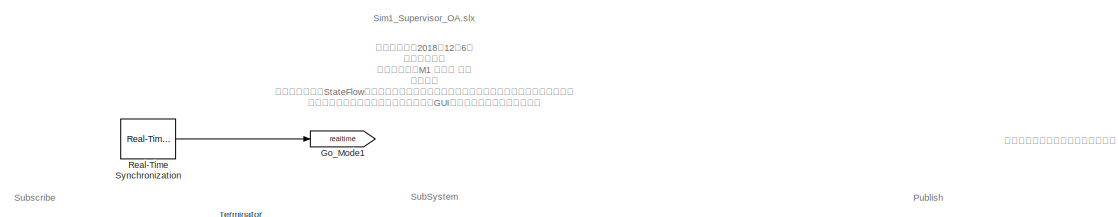
[diagram: root canvas - part 1/2, full width, top band]
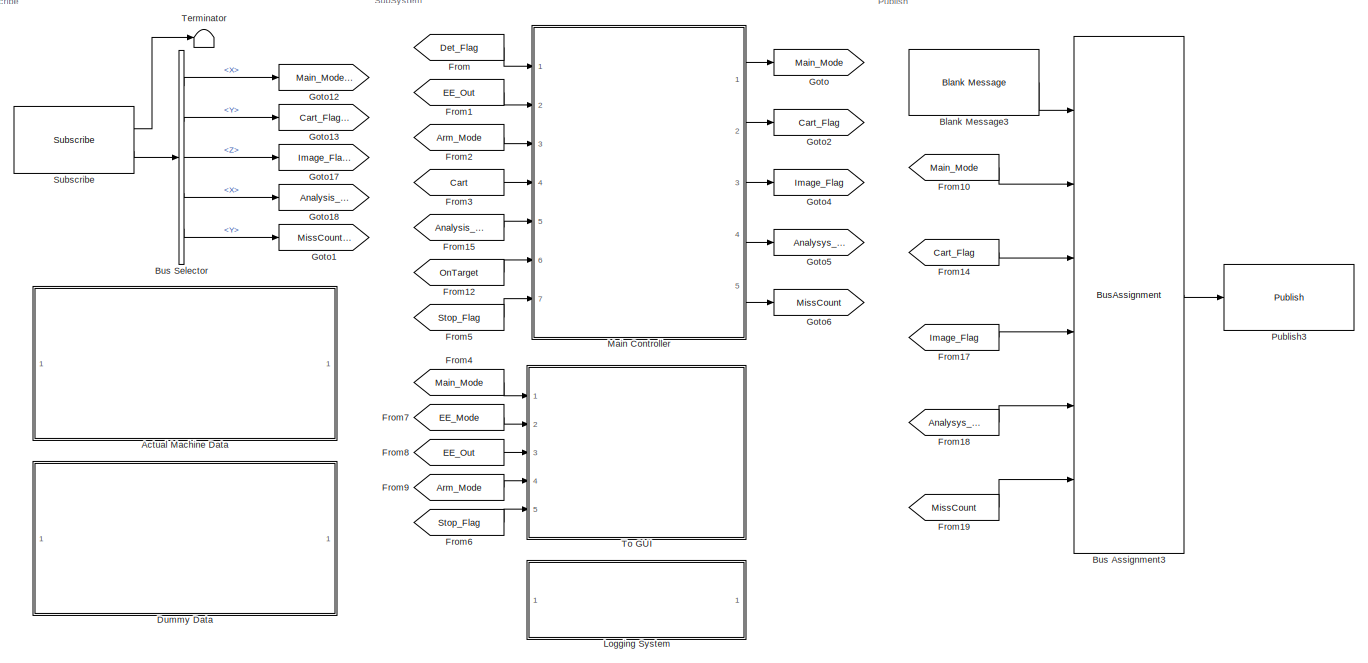
[diagram: root canvas - part 2/2, most of the canvas]
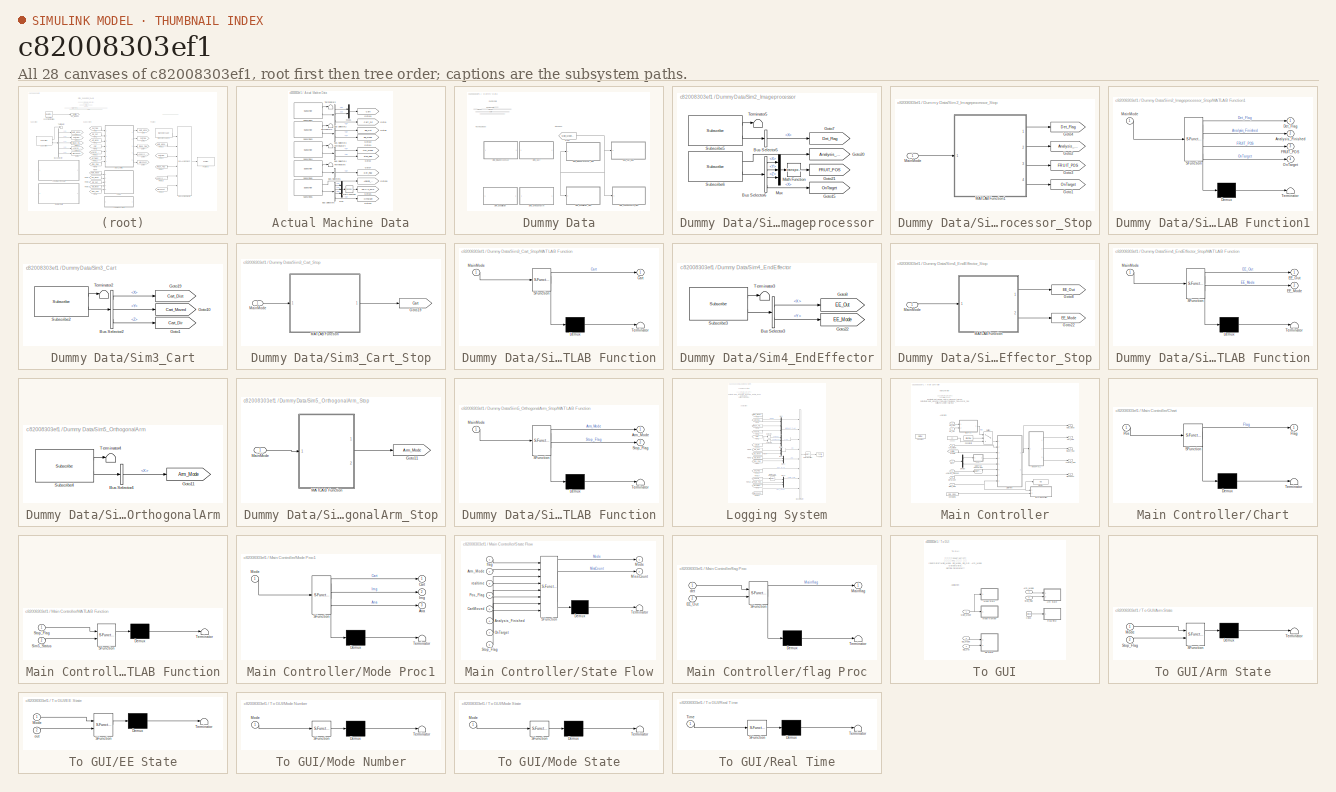
[diagram: thumbnail index - all 28 canvases of the model, root first then tree order]
MODEL slx_c82008303ef1
KIND model
CONFIG AbsTol = auto
CONFIG EnableMultiTasking = off
CONFIG FixedStep = auto
CONFIG MaxStep = auto
CONFIG MinStep = auto
CONFIG RelTol = 1e-3
CONFIG SampleTimeConstraint = Unconstrained
CONFIG SolverName = VariableStepAuto
CONFIG StartTime = 0.0
CONFIG StopFcn = %run('AutomoveData.m')
CONFIG StopTime = Inf
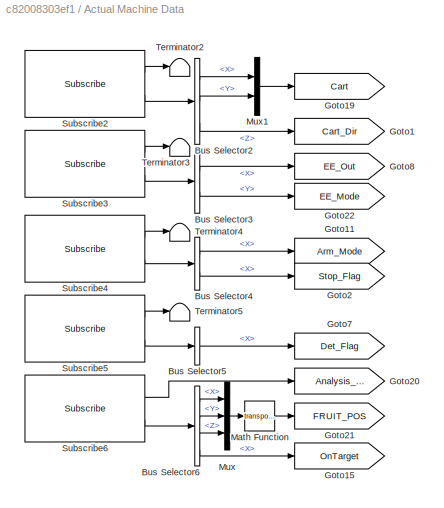
BLOCK [SubSystem] Actual Machine Data
  Ports = []
  RequestExecContextInheritance = off
BLOCK [BusSelector] Actual Machine Data/Bus Selector2
  OutputSignals = Twist.Linear.X,Twist.Linear.Y,Twist.Linear.Z
  Ports = [1, 3]
BLOCK [BusSelector] Actual Machine Data/Bus Selector3
  OutputSignals = Twist.Linear.X,Twist.Linear.Y
  Ports = [1, 2]
BLOCK [BusSelector] Actual Machine Data/Bus Selector4
  OutputSignals = Twist.Linear.X,Twist.Angular.X
  Ports = [1, 2]
BLOCK [BusSelector] Actual Machine Data/Bus Selector5
  OutputSignals = Twist.Linear.X
  Ports = [1, 1]
BLOCK [BusSelector] Actual Machine Data/Bus Selector6
  OutputSignals = Twist.Linear.X,Twist.Linear.Y,Twist.Linear.Z,Twist.Angular.X
  Ports = [1, 4]
BLOCK [Goto] Actual Machine Data/Goto1
  GotoTag = Cart_Dir
  TagVisibility = global
BLOCK [Goto] Actual Machine Data/Goto11
  GotoTag = Arm_Mode
  TagVisibility = global
BLOCK [Goto] Actual Machine Data/Goto15
  GotoTag = OnTarget
  TagVisibility = global
BLOCK [Goto] Actual Machine Data/Goto19
  GotoTag = Cart
  TagVisibility = global
BLOCK [Goto] Actual Machine Data/Goto2
  GotoTag = Stop_Flag
  TagVisibility = global
BLOCK [Goto] Actual Machine Data/Goto20
  GotoTag = Analysis_Finished
  TagVisibility = global
BLOCK [Goto] Actual Machine Data/Goto21
  GotoTag = FRUIT_POS
  TagVisibility = global
BLOCK [Goto] Actual Machine Data/Goto22
  GotoTag = EE_Mode
  TagVisibility = global
BLOCK [Goto] Actual Machine Data/Goto7
  GotoTag = Det_Flag
  TagVisibility = global
BLOCK [Goto] Actual Machine Data/Goto8
  GotoTag = EE_Out
  TagVisibility = global
BLOCK [Math] Actual Machine Data/Math Function
  Operator = transpose
  Ports = [1, 1]
  SignedPower = on
BLOCK [Mux] Actual Machine Data/Mux
  DisplayOption = bar
  Inputs = 3
  Ports = [3, 1]
BLOCK [Mux] Actual Machine Data/Mux1
  DisplayOption = bar
  Inputs = 2
  Ports = [2, 1]
BLOCK [Reference] Actual Machine Data/Subscribe2  REF=robotlib/Subscribe
  Ports = [0, 2]
  SourceBlock = robotlib/Subscribe
  SourceProductBaseCode = RR
  SourceType = ROS Subscribe
BLOCK [Reference] Actual Machine Data/Subscribe3  REF=robotlib/Subscribe
  Ports = [0, 2]
  SourceBlock = robotlib/Subscribe
  SourceProductBaseCode = RR
  SourceType = ROS Subscribe
BLOCK [Reference] Actual Machine Data/Subscribe4  REF=robotlib/Subscribe
  Ports = [0, 2]
  SourceBlock = robotlib/Subscribe
  SourceProductBaseCode = RR
  SourceType = ROS Subscribe
BLOCK [Reference] Actual Machine Data/Subscribe5  REF=robotlib/Subscribe
  Ports = [0, 2]
  SourceBlock = robotlib/Subscribe
  SourceProductBaseCode = RR
  SourceType = ROS Subscribe
BLOCK [Reference] Actual Machine Data/Subscribe6  REF=robotlib/Subscribe
  Ports = [0, 2]
  SourceBlock = robotlib/Subscribe
  SourceProductBaseCode = RR
  SourceType = ROS Subscribe
BLOCK [Terminator] Actual Machine Data/Terminator2
BLOCK [Terminator] Actual Machine Data/Terminator3
BLOCK [Terminator] Actual Machine Data/Terminator4
BLOCK [Terminator] Actual Machine Data/Terminator5
BLOCK [Reference] Blank Message3  REF=robotlib/Blank Message
  Ports = [0, 1]
  SourceBlock = robotlib/Blank Message
  SourceProductBaseCode = RR
  SourceType = ROS Blank Message
BLOCK [BusAssignment] Bus Assignment3
  AssignedSignals = Twist.Linear.X,Twist.Linear.Y,Twist.Linear.Z,Twist.Angular.X,Twist.Angular.Y
  Ports = [6, 1]
BLOCK [BusSelector] Bus Selector
  OutputSignals = Twist.Linear.X,Twist.Linear.Y,Twist.Linear.Z,Twist.Angular.X,Twist.Angular.Y
  Ports = [1, 5]
BLOCK [SubSystem] Dummy Data
  Commented = on
  Ports = []
  RequestExecContextInheritance = off
BLOCK [From] Dummy Data/From
  GotoTag = Main_Mode_R
  TagVisibility = global
BLOCK [SubSystem] Dummy Data/Sim2_Imageprocessor
  Commented = on
  Ports = []
  RequestExecContextInheritance = off
BLOCK [BusSelector] Dummy Data/Sim2_Imageprocessor/Bus Selector5
  OutputSignals = Twist.Linear.X
  Ports = [1, 1]
BLOCK [BusSelector] Dummy Data/Sim2_Imageprocessor/Bus Selector6
  OutputSignals = Twist.Linear.X,Twist.Linear.Y,Twist.Linear.Z,Twist.Angular.X
  Ports = [1, 4]
BLOCK [Goto] Dummy Data/Sim2_Imageprocessor/Goto15
  GotoTag = OnTarget
  TagVisibility = global
BLOCK [Goto] Dummy Data/Sim2_Imageprocessor/Goto20
  GotoTag = Analysis_Finished
  TagVisibility = global
BLOCK [Goto] Dummy Data/Sim2_Imageprocessor/Goto21
  GotoTag = FRUIT_POS
  TagVisibility = global
BLOCK [Goto] Dummy Data/Sim2_Imageprocessor/Goto7
  GotoTag = Det_Flag
  TagVisibility = global
BLOCK [Math] Dummy Data/Sim2_Imageprocessor/Math Function
  Operator = transpose
  Ports = [1, 1]
  SignedPower = on
BLOCK [Mux] Dummy Data/Sim2_Imageprocessor/Mux
  DisplayOption = bar
  Inputs = 3
  Ports = [3, 1]
BLOCK [Reference] Dummy Data/Sim2_Imageprocessor/Subscribe5  REF=robotlib/Subscribe
  Ports = [0, 2]
  SourceBlock = robotlib/Subscribe
  SourceProductBaseCode = RR
  SourceType = ROS Subscribe
BLOCK [Reference] Dummy Data/Sim2_Imageprocessor/Subscribe6  REF=robotlib/Subscribe
  Ports = [0, 2]
  SourceBlock = robotlib/Subscribe
  SourceProductBaseCode = RR
  SourceType = ROS Subscribe
BLOCK [Terminator] Dummy Data/Sim2_Imageprocessor/Terminator5
BLOCK [SubSystem] Dummy Data/Sim2_Imageprocessor_Stop
  Ports = [1]
  RequestExecContextInheritance = off
BLOCK [Goto] Dummy Data/Sim2_Imageprocessor_Stop/Goto1
  GotoTag = OnTarget
  TagVisibility = global
BLOCK [Goto] Dummy Data/Sim2_Imageprocessor_Stop/Goto2
  GotoTag = Analysis_Finished
  TagVisibility = global
BLOCK [Goto] Dummy Data/Sim2_Imageprocessor_Stop/Goto3
  GotoTag = FRUIT_POS
  TagVisibility = global
BLOCK [Goto] Dummy Data/Sim2_Imageprocessor_Stop/Goto4
  GotoTag = Det_Flag
  TagVisibility = global
BLOCK [SubSystem] Dummy Data/Sim2_Imageprocessor_Stop/MATLAB Function1
  ErrorFcn = Stateflow.Translate.translate
  PermitHierarchicalResolution = ExplicitOnly
  Ports = [1, 4]
  RequestExecContextInheritance = off
  SFBlockType = MATLAB Function
  TreatAsAtomicUnit = on
BLOCK [Demux] Dummy Data/Sim2_Imageprocessor_Stop/MATLAB Function1/ Demux 
  Outputs = 1
  Ports = [1, 1]
BLOCK [S-Function] Dummy Data/Sim2_Imageprocessor_Stop/MATLAB Function1/ SFunction 
  EnableBusSupport = on
  FunctionName = sf_sfun
  PortCounts = [1 5]
  Ports = [1, 5]
  SFcnIsStateOwnerBlock = off
  SFunctionDeploymentMode = off
  Tag = Stateflow S-Function 7
BLOCK [Terminator] Dummy Data/Sim2_Imageprocessor_Stop/MATLAB Function1/ Terminator 
BLOCK [Outport] Dummy Data/Sim2_Imageprocessor_Stop/MATLAB Function1/Analysis_Finished
  Port = 2
  VectorParamsAs1DForOutWhenUnconnected = off
BLOCK [Outport] Dummy Data/Sim2_Imageprocessor_Stop/MATLAB Function1/Det_Flag
  VectorParamsAs1DForOutWhenUnconnected = off
BLOCK [Outport] Dummy Data/Sim2_Imageprocessor_Stop/MATLAB Function1/FRUIT_POS
  Port = 3
  VectorParamsAs1DForOutWhenUnconnected = off
BLOCK [Inport] Dummy Data/Sim2_Imageprocessor_Stop/MATLAB Function1/MainMode
BLOCK [Outport] Dummy Data/Sim2_Imageprocessor_Stop/MATLAB Function1/OnTarget
  Port = 4
  VectorParamsAs1DForOutWhenUnconnected = off
BLOCK [Inport] Dummy Data/Sim2_Imageprocessor_Stop/MainMode
BLOCK [SubSystem] Dummy Data/Sim3_Cart
  Commented = on
  Ports = []
  RequestExecContextInheritance = off
BLOCK [BusSelector] Dummy Data/Sim3_Cart/Bus Selector2
  OutputSignals = Twist.Linear.X,Twist.Linear.Y,Twist.Linear.Z
  Ports = [1, 3]
BLOCK [Goto] Dummy Data/Sim3_Cart/Goto1
  GotoTag = Cart_Dir
  TagVisibility = global
BLOCK [Goto] Dummy Data/Sim3_Cart/Goto10
  GotoTag = Cart_Moved
  TagVisibility = global
BLOCK [Goto] Dummy Data/Sim3_Cart/Goto19
  GotoTag = Cart_Dist
  TagVisibility = global
BLOCK [Reference] Dummy Data/Sim3_Cart/Subscribe2  REF=robotlib/Subscribe
  Ports = [0, 2]
  SourceBlock = robotlib/Subscribe
  SourceProductBaseCode = RR
  SourceType = ROS Subscribe
BLOCK [Terminator] Dummy Data/Sim3_Cart/Terminator2
BLOCK [SubSystem] Dummy Data/Sim3_Cart_Stop
  Ports = [1]
  RequestExecContextInheritance = off
BLOCK [Goto] Dummy Data/Sim3_Cart_Stop/Goto19
  GotoTag = Cart
  TagVisibility = global
BLOCK [SubSystem] Dummy Data/Sim3_Cart_Stop/MATLAB Function
  ErrorFcn = Stateflow.Translate.translate
  PermitHierarchicalResolution = ExplicitOnly
  Ports = [1, 1]
  RequestExecContextInheritance = off
  SFBlockType = MATLAB Function
  TreatAsAtomicUnit = on
BLOCK [Demux] Dummy Data/Sim3_Cart_Stop/MATLAB Function/ Demux 
  Outputs = 1
  Ports = [1, 1]
BLOCK [S-Function] Dummy Data/Sim3_Cart_Stop/MATLAB Function/ SFunction 
  EnableBusSupport = on
  FunctionName = sf_sfun
  PortCounts = [1 2]
  Ports = [1, 2]
  SFcnIsStateOwnerBlock = off
  SFunctionDeploymentMode = off
  Tag = Stateflow S-Function 3
BLOCK [Terminator] Dummy Data/Sim3_Cart_Stop/MATLAB Function/ Terminator 
BLOCK [Outport] Dummy Data/Sim3_Cart_Stop/MATLAB Function/Cart
  VectorParamsAs1DForOutWhenUnconnected = off
BLOCK [Inport] Dummy Data/Sim3_Cart_Stop/MATLAB Function/MainMode
BLOCK [Inport] Dummy Data/Sim3_Cart_Stop/MainMode
BLOCK [SubSystem] Dummy Data/Sim4_EndEffector
  Commented = on
  Ports = []
  RequestExecContextInheritance = off
BLOCK [BusSelector] Dummy Data/Sim4_EndEffector/Bus Selector3
  OutputSignals = Twist.Linear.X,Twist.Linear.Y
  Ports = [1, 2]
BLOCK [Goto] Dummy Data/Sim4_EndEffector/Goto22
  GotoTag = EE_Mode
  TagVisibility = global
BLOCK [Goto] Dummy Data/Sim4_EndEffector/Goto8
  GotoTag = EE_Out
  TagVisibility = global
BLOCK [Reference] Dummy Data/Sim4_EndEffector/Subscribe3  REF=robotlib/Subscribe
  Ports = [0, 2]
  SourceBlock = robotlib/Subscribe
  SourceProductBaseCode = RR
  SourceType = ROS Subscribe
BLOCK [Terminator] Dummy Data/Sim4_EndEffector/Terminator3
BLOCK [SubSystem] Dummy Data/Sim4_EndEffector_Stop
  Ports = [1]
  RequestExecContextInheritance = off
BLOCK [Goto] Dummy Data/Sim4_EndEffector_Stop/Goto22
  GotoTag = EE_Mode
  TagVisibility = global
BLOCK [Goto] Dummy Data/Sim4_EndEffector_Stop/Goto8
  GotoTag = EE_Out
  TagVisibility = global
BLOCK [SubSystem] Dummy Data/Sim4_EndEffector_Stop/MATLAB Function
  ErrorFcn = Stateflow.Translate.translate
  PermitHierarchicalResolution = ExplicitOnly
  Ports = [1, 2]
  RequestExecContextInheritance = off
  SFBlockType = MATLAB Function
  TreatAsAtomicUnit = on
BLOCK [Demux] Dummy Data/Sim4_EndEffector_Stop/MATLAB Function/ Demux 
  Outputs = 1
  Ports = [1, 1]
BLOCK [S-Function] Dummy Data/Sim4_EndEffector_Stop/MATLAB Function/ SFunction 
  EnableBusSupport = on
  FunctionName = sf_sfun
  PortCounts = [1 3]
  Ports = [1, 3]
  SFcnIsStateOwnerBlock = off
  SFunctionDeploymentMode = off
  Tag = Stateflow S-Function 4
BLOCK [Terminator] Dummy Data/Sim4_EndEffector_Stop/MATLAB Function/ Terminator 
BLOCK [Outport] Dummy Data/Sim4_EndEffector_Stop/MATLAB Function/EE_Mode
  Port = 2
  VectorParamsAs1DForOutWhenUnconnected = off
BLOCK [Outport] Dummy Data/Sim4_EndEffector_Stop/MATLAB Function/EE_Out
  VectorParamsAs1DForOutWhenUnconnected = off
BLOCK [Inport] Dummy Data/Sim4_EndEffector_Stop/MATLAB Function/MainMode
BLOCK [Inport] Dummy Data/Sim4_EndEffector_Stop/MainMode
BLOCK [SubSystem] Dummy Data/Sim5_OrthogonalArm
  Commented = on
  Ports = []
  RequestExecContextInheritance = off
BLOCK [BusSelector] Dummy Data/Sim5_OrthogonalArm/Bus Selector4
  OutputSignals = Twist.Linear.X
  Ports = [1, 1]
BLOCK [Goto] Dummy Data/Sim5_OrthogonalArm/Goto11
  GotoTag = Arm_Mode
  TagVisibility = global
BLOCK [Reference] Dummy Data/Sim5_OrthogonalArm/Subscribe4  REF=robotlib/Subscribe
  Ports = [0, 2]
  SourceBlock = robotlib/Subscribe
  SourceProductBaseCode = RR
  SourceType = ROS Subscribe
BLOCK [Terminator] Dummy Data/Sim5_OrthogonalArm/Terminator4
BLOCK [SubSystem] Dummy Data/Sim5_OrthogonalArm_Stop
  Ports = [1]
  RequestExecContextInheritance = off
BLOCK [Goto] Dummy Data/Sim5_OrthogonalArm_Stop/Goto11
  GotoTag = Arm_Mode
  TagVisibility = global
BLOCK [SubSystem] Dummy Data/Sim5_OrthogonalArm_Stop/MATLAB Function
  ErrorFcn = Stateflow.Translate.translate
  PermitHierarchicalResolution = ExplicitOnly
  Ports = [1, 2]
  RequestExecContextInheritance = off
  SFBlockType = MATLAB Function
  TreatAsAtomicUnit = on
BLOCK [Demux] Dummy Data/Sim5_OrthogonalArm_Stop/MATLAB Function/ Demux 
  Outputs = 1
  Ports = [1, 1]
BLOCK [S-Function] Dummy Data/Sim5_OrthogonalArm_Stop/MATLAB Function/ SFunction 
  EnableBusSupport = on
  FunctionName = sf_sfun
  PortCounts = [1 3]
  Ports = [1, 3]
  SFcnIsStateOwnerBlock = off
  SFunctionDeploymentMode = off
  Tag = Stateflow S-Function 6
BLOCK [Terminator] Dummy Data/Sim5_OrthogonalArm_Stop/MATLAB Function/ Terminator 
BLOCK [Outport] Dummy Data/Sim5_OrthogonalArm_Stop/MATLAB Function/Arm_Mode
  VectorParamsAs1DForOutWhenUnconnected = off
BLOCK [Inport] Dummy Data/Sim5_OrthogonalArm_Stop/MATLAB Function/MainMode
BLOCK [Outport] Dummy Data/Sim5_OrthogonalArm_Stop/MATLAB Function/Stop_Flag
  Port = 2
  VectorParamsAs1DForOutWhenUnconnected = off
BLOCK [Inport] Dummy Data/Sim5_OrthogonalArm_Stop/MainMode
BLOCK [From] From
  GotoTag = Det_Flag
  TagVisibility = global
BLOCK [From] From1
  GotoTag = EE_Out
  TagVisibility = global
BLOCK [From] From10
  GotoTag = Main_Mode
  TagVisibility = global
BLOCK [From] From12
  GotoTag = OnTarget
  TagVisibility = global
BLOCK [From] From14
  GotoTag = Cart_Flag
  TagVisibility = global
BLOCK [From] From15
  GotoTag = Analysis_Finished
  TagVisibility = global
BLOCK [From] From17
  GotoTag = Image_Flag
  TagVisibility = global
BLOCK [From] From18
  GotoTag = Analysys_Flag
  TagVisibility = global
BLOCK [From] From19
  GotoTag = MissCount
  TagVisibility = global
BLOCK [From] From2
  GotoTag = Arm_Mode
  TagVisibility = global
BLOCK [From] From3
  GotoTag = Cart
  TagVisibility = global
BLOCK [From] From4
  GotoTag = Main_Mode
  TagVisibility = global
BLOCK [From] From5
  GotoTag = Stop_Flag
  TagVisibility = global
BLOCK [From] From6
  GotoTag = Stop_Flag
  TagVisibility = global
BLOCK [From] From7
  GotoTag = EE_Mode
  TagVisibility = global
BLOCK [From] From8
  GotoTag = EE_Out
  TagVisibility = global
BLOCK [From] From9
  GotoTag = Arm_Mode
  TagVisibility = global
BLOCK [Goto] Go_Mode1
  GotoTag = realtime
  TagVisibility = global
BLOCK [Goto] Goto
  GotoTag = Main_Mode
  TagVisibility = global
BLOCK [Goto] Goto1
  GotoTag = MissCount_R
  TagVisibility = global
BLOCK [Goto] Goto12
  GotoTag = Main_Mode_R
  TagVisibility = global
BLOCK [Goto] Goto13
  GotoTag = Cart_Flag_R
  TagVisibility = global
BLOCK [Goto] Goto17
  GotoTag = Image_Flag_R
  TagVisibility = global
BLOCK [Goto] Goto18
  GotoTag = Analysis_Flag_R
  TagVisibility = global
BLOCK [Goto] Goto2
  GotoTag = Cart_Flag
  TagVisibility = global
BLOCK [Goto] Goto4
  GotoTag = Image_Flag
  TagVisibility = global
BLOCK [Goto] Goto5
  GotoTag = Analysys_Flag
  TagVisibility = global
BLOCK [Goto] Goto6
  GotoTag = MissCount
  TagVisibility = global
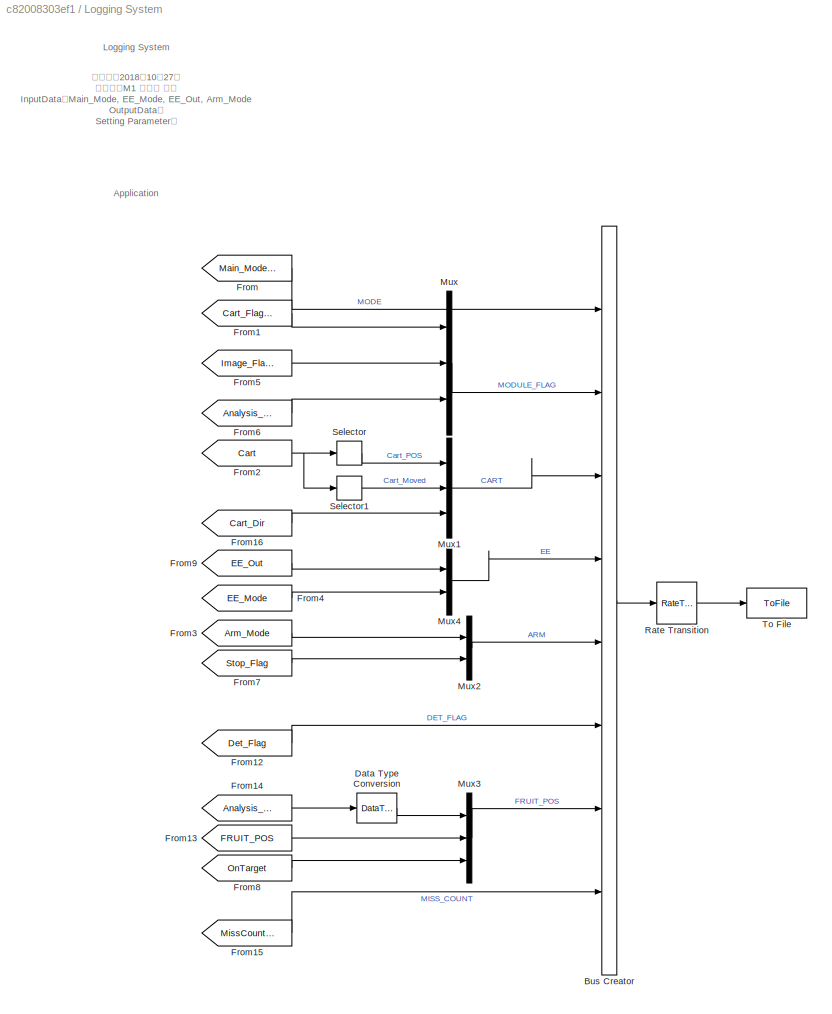
BLOCK [SubSystem] Logging System
  Ports = []
  RequestExecContextInheritance = off
BLOCK [BusCreator] Logging System/Bus Creator
  DisplayOption = bar
  InheritFromInputs = on
  Inputs = 8
  Ports = [8, 1]
BLOCK [DataTypeConversion] Logging System/Data Type Conversion
  RndMeth = Floor
  SaturateOnIntegerOverflow = off
BLOCK [From] Logging System/From
  GotoTag = Main_Mode_R
  TagVisibility = global
BLOCK [From] Logging System/From1
  GotoTag = Cart_Flag_R
  TagVisibility = global
BLOCK [From] Logging System/From12
  GotoTag = Det_Flag
  TagVisibility = global
BLOCK [From] Logging System/From13
  GotoTag = FRUIT_POS
  TagVisibility = global
BLOCK [From] Logging System/From14
  GotoTag = Analysis_Finished
  TagVisibility = global
BLOCK [From] Logging System/From15
  GotoTag = MissCount_R
  TagVisibility = global
BLOCK [From] Logging System/From16
  GotoTag = Cart_Dir
  TagVisibility = global
BLOCK [From] Logging System/From2
  GotoTag = Cart
  TagVisibility = global
BLOCK [From] Logging System/From3
  GotoTag = Arm_Mode
  TagVisibility = global
BLOCK [From] Logging System/From4
  GotoTag = EE_Mode
  TagVisibility = global
BLOCK [From] Logging System/From5
  GotoTag = Image_Flag_R
  TagVisibility = global
BLOCK [From] Logging System/From6
  GotoTag = Analysis_Flag_R
  TagVisibility = global
BLOCK [From] Logging System/From7
  GotoTag = Stop_Flag
  TagVisibility = global
BLOCK [From] Logging System/From8
  GotoTag = OnTarget
  TagVisibility = global
BLOCK [From] Logging System/From9
  GotoTag = EE_Out
  TagVisibility = global
BLOCK [Mux] Logging System/Mux
  DisplayOption = bar
  Inputs = 3
  Ports = [3, 1]
BLOCK [Mux] Logging System/Mux1
  DisplayOption = bar
  Inputs = 3
  Ports = [3, 1]
BLOCK [Mux] Logging System/Mux2
  DisplayOption = bar
  Inputs = 2
  Ports = [2, 1]
BLOCK [Mux] Logging System/Mux3
  DisplayOption = bar
  Inputs = 3
  Ports = [3, 1]
BLOCK [Mux] Logging System/Mux4
  DisplayOption = bar
  Inputs = 2
  Ports = [2, 1]
BLOCK [RateTransition] Logging System/Rate Transition
BLOCK [Selector] Logging System/Selector
  IndexOptions = Index vector (dialog)
  Indices = [1]
  InputPortWidth = 2
  OutputSizes = 1
  Ports = [1, 1]
BLOCK [Selector] Logging System/Selector1
  IndexOptions = Index vector (dialog)
  Indices = [2]
  InputPortWidth = 2
  OutputSizes = 1
  Ports = [1, 1]
BLOCK [ToFile] Logging System/To File
  Filename = LogData.mat
  MatrixName = LogData
  Ports = [1]
  SaveFormat = Timeseries
BLOCK [SubSystem] Main Controller
  Ports = [7, 5]
  RequestExecContextInheritance = off
BLOCK [Inport] Main Controller/Analysis_Finished
  Port = 5
BLOCK [Outport] Main Controller/Analysis_Flag
  Port = 4
  VectorParamsAs1DForOutWhenUnconnected = off
BLOCK [Inport] Main Controller/Arm_Mode
  Port = 3
BLOCK [Inport] Main Controller/Cart
  Port = 4
BLOCK [Outport] Main Controller/Cart_Flag
  Port = 2
  VectorParamsAs1DForOutWhenUnconnected = off
BLOCK [SubSystem] Main Controller/Chart
  ErrorFcn = Stateflow.Translate.translate
  PermitHierarchicalResolution = ExplicitOnly
  Ports = [1, 1]
  RequestExecContextInheritance = off
  SFBlockType = Chart
  TreatAsAtomicUnit = on
BLOCK [Demux] Main Controller/Chart/ Demux 
  Outputs = 1
  Ports = [1, 1]
BLOCK [S-Function] Main Controller/Chart/ SFunction 
  EnableBusSupport = on
  FunctionName = sf_sfun
  PortCounts = [1 2]
  Ports = [1, 2]
  SFcnIsStateOwnerBlock = off
  SFunctionDeploymentMode = off
  Tag = Stateflow S-Function 2
BLOCK [Terminator] Main Controller/Chart/ Terminator 
BLOCK [Outport] Main Controller/Chart/Flag
  VectorParamsAs1DForOutWhenUnconnected = off
BLOCK [Inport] Main Controller/Chart/Pos
BLOCK [Constant] Main Controller/Constant
  Commented = on
  SampleTime = Inf
  Value = StartSW
BLOCK [Constant] Main Controller/Constant1
  SampleTime = dt
  Value = Sim5_Status
BLOCK [Constant] Main Controller/Constant2
  Value = StartSW
BLOCK [DataTypeConversion] Main Controller/Data Type Conversion
  RndMeth = Floor
  SaturateOnIntegerOverflow = off
BLOCK [Demux] Main Controller/Demux
  Outputs = 2
  Ports = [1, 2]
BLOCK [Inport] Main Controller/Det_Flag
BLOCK [Display] Main Controller/Display
  Decimation = 1
  Ports = [1]
BLOCK [Inport] Main Controller/EE_Out
  Port = 2
BLOCK [From] Main Controller/From3
  GotoTag = realtime
  TagVisibility = global
BLOCK [Outport] Main Controller/Image_Flag
  Port = 3
  VectorParamsAs1DForOutWhenUnconnected = off
BLOCK [SubSystem] Main Controller/MATLAB Function
  ErrorFcn = Stateflow.Translate.translate
  PermitHierarchicalResolution = ExplicitOnly
  Ports = [2]
  RequestExecContextInheritance = off
  SFBlockType = MATLAB Function
  TreatAsAtomicUnit = on
BLOCK [Demux] Main Controller/MATLAB Function/ Demux 
  Outputs = 1
  Ports = [1, 1]
BLOCK [S-Function] Main Controller/MATLAB Function/ SFunction 
  EnableBusSupport = on
  FunctionName = sf_sfun
  PortCounts = [2 1]
  Ports = [2, 1]
  SFcnIsStateOwnerBlock = off
  SFunctionDeploymentMode = off
  Tag = Stateflow S-Function 9
BLOCK [Terminator] Main Controller/MATLAB Function/ Terminator 
BLOCK [Inport] Main Controller/MATLAB Function/Sim5_Status
  Port = 2
BLOCK [Inport] Main Controller/MATLAB Function/Stop_Flag
BLOCK [Outport] Main Controller/Main_Mode
  VectorParamsAs1DForOutWhenUnconnected = off
BLOCK [Outport] Main Controller/MissCount
  Port = 5
  VectorParamsAs1DForOutWhenUnconnected = off
BLOCK [SubSystem] Main Controller/Mode Proc1
  ErrorFcn = Stateflow.Translate.translate
  PermitHierarchicalResolution = ExplicitOnly
  Ports = [1, 3]
  RequestExecContextInheritance = off
  SFBlockType = MATLAB Function
  TreatAsAtomicUnit = on
BLOCK [Demux] Main Controller/Mode Proc1/ Demux 
  Outputs = 1
  Ports = [1, 1]
BLOCK [S-Function] Main Controller/Mode Proc1/ SFunction 
  EnableBusSupport = on
  FunctionName = sf_sfun
  PortCounts = [1 4]
  Ports = [1, 4]
  SFcnIsStateOwnerBlock = off
  SFunctionDeploymentMode = off
  Tag = Stateflow S-Function 5
BLOCK [Terminator] Main Controller/Mode Proc1/ Terminator 
BLOCK [Outport] Main Controller/Mode Proc1/Ana
  Port = 3
  VectorParamsAs1DForOutWhenUnconnected = off
BLOCK [Outport] Main Controller/Mode Proc1/Cart
  VectorParamsAs1DForOutWhenUnconnected = off
BLOCK [Outport] Main Controller/Mode Proc1/Img
  Port = 2
  VectorParamsAs1DForOutWhenUnconnected = off
BLOCK [Inport] Main Controller/Mode Proc1/Mode
BLOCK [Inport] Main Controller/OnTarget
  Port = 6
BLOCK [SubSystem] Main Controller/State Flow
  ErrorFcn = Stateflow.Translate.translate
  PermitHierarchicalResolution = ExplicitOnly
  Ports = [8, 2]
  RequestExecContextInheritance = off
  SFBlockType = Chart
  TreatAsAtomicUnit = on
BLOCK [Demux] Main Controller/State Flow/ Demux 
  Outputs = 1
  Ports = [1, 1]
BLOCK [S-Function] Main Controller/State Flow/ SFunction 
  EnableBusSupport = on
  FunctionName = sf_sfun
  PortCounts = [8 3]
  Ports = [8, 3]
  SFcnIsStateOwnerBlock = off
  SFunctionDeploymentMode = off
  Tag = Stateflow S-Function 1
BLOCK [Terminator] Main Controller/State Flow/ Terminator 
BLOCK [Inport] Main Controller/State Flow/Analysis_Finished
  Port = 6
BLOCK [Inport] Main Controller/State Flow/Arm_Mode
  Port = 2
BLOCK [Inport] Main Controller/State Flow/CartMoved
  Port = 5
BLOCK [Outport] Main Controller/State Flow/MissCount
  Port = 2
  VectorParamsAs1DForOutWhenUnconnected = off
BLOCK [Outport] Main Controller/State Flow/Mode
  VectorParamsAs1DForOutWhenUnconnected = off
BLOCK [Inport] Main Controller/State Flow/OnTarget
  Port = 7
BLOCK [Inport] Main Controller/State Flow/Pos_Flag
  Port = 4
BLOCK [Inport] Main Controller/State Flow/Stop_Flag
  Port = 8
BLOCK [Inport] Main Controller/State Flow/flag
BLOCK [Inport] Main Controller/State Flow/realtime
  Port = 3
BLOCK [Inport] Main Controller/Stop_Flag
  Port = 7
BLOCK [Switch] Main Controller/Switch
  Criteria = u2 ~= 0
  InputSameDT = off
  SaturateOnIntegerOverflow = off
BLOCK [SubSystem] Main Controller/flag Proc
  ErrorFcn = Stateflow.Translate.translate
  PermitHierarchicalResolution = ExplicitOnly
  Ports = [2, 1]
  RequestExecContextInheritance = off
  SFBlockType = MATLAB Function
  TreatAsAtomicUnit = on
BLOCK [Demux] Main Controller/flag Proc/ Demux 
  Outputs = 1
  Ports = [1, 1]
BLOCK [S-Function] Main Controller/flag Proc/ SFunction 
  EnableBusSupport = on
  FunctionName = sf_sfun
  PortCounts = [2 2]
  Ports = [2, 2]
  SFcnIsStateOwnerBlock = off
  SFunctionDeploymentMode = off
  Tag = Stateflow S-Function 8
BLOCK [Terminator] Main Controller/flag Proc/ Terminator 
BLOCK [Inport] Main Controller/flag Proc/EE_Out
  Port = 2
BLOCK [Outport] Main Controller/flag Proc/Mainflag
  VectorParamsAs1DForOutWhenUnconnected = off
BLOCK [Inport] Main Controller/flag Proc/det
BLOCK [Constant] Main Controller/待機フラグ
  Value = 12
BLOCK [Reference] Publish3  REF=robotlib/Publish
  Ports = [1]
  SourceBlock = robotlib/Publish
  SourceProductBaseCode = RR
  SourceType = ROS Publish
BLOCK [Reference] Real-Time Synchronization  REF=sldrtlib/Real-Time
Synchronization
  Ports = [0, 1]
  SourceBlock = sldrtlib/Real-Time\nSynchronization
  SourceProductBaseCode = WT
  SourceType = Simulink Desktop Real-Time Synchronization
BLOCK [Reference] Subscribe  REF=robotlib/Subscribe
  Ports = [0, 2]
  SourceBlock = robotlib/Subscribe
  SourceProductBaseCode = RR
  SourceType = ROS Subscribe
BLOCK [Terminator] Terminator
BLOCK [SubSystem] To GUI
  Ports = [5]
  RequestExecContextInheritance = off
BLOCK [SubSystem] To GUI/Arm State
  ErrorFcn = Stateflow.Translate.translate
  PermitHierarchicalResolution = ExplicitOnly
  Ports = [2]
  RequestExecContextInheritance = off
  SFBlockType = MATLAB Function
  TreatAsAtomicUnit = on
BLOCK [Demux] To GUI/Arm State/ Demux 
  Outputs = 1
  Ports = [1, 1]
BLOCK [S-Function] To GUI/Arm State/ SFunction 
  EnableBusSupport = on
  FunctionName = sf_sfun
  PortCounts = [2 1]
  Ports = [2, 1]
  SFcnIsStateOwnerBlock = off
  SFunctionDeploymentMode = off
  Tag = Stateflow S-Function 27
BLOCK [Terminator] To GUI/Arm State/ Terminator 
BLOCK [Inport] To GUI/Arm State/Mode
BLOCK [Inport] To GUI/Arm State/Stop_Flag
  Port = 2
BLOCK [Inport] To GUI/Arm_Mode
  Port = 4
BLOCK [Clock] To GUI/Clock
BLOCK [SubSystem] To GUI/EE State
  ErrorFcn = Stateflow.Translate.translate
  PermitHierarchicalResolution = ExplicitOnly
  Ports = [2]
  RequestExecContextInheritance = off
  SFBlockType = MATLAB Function
  TreatAsAtomicUnit = on
BLOCK [Demux] To GUI/EE State/ Demux 
  Outputs = 1
  Ports = [1, 1]
BLOCK [S-Function] To GUI/EE State/ SFunction 
  EnableBusSupport = on
  FunctionName = sf_sfun
  PortCounts = [2 1]
  Ports = [2, 1]
  SFcnIsStateOwnerBlock = off
  SFunctionDeploymentMode = off
  Tag = Stateflow S-Function 26
BLOCK [Terminator] To GUI/EE State/ Terminator 
BLOCK [Inport] To GUI/EE State/Mode
BLOCK [Inport] To GUI/EE State/out
  Port = 2
BLOCK [Inport] To GUI/EE_Mode
  Port = 2
BLOCK [Inport] To GUI/EE_Out
  Port = 3
BLOCK [Inport] To GUI/Main_Mode
BLOCK [SubSystem] To GUI/Mode Number
  ErrorFcn = Stateflow.Translate.translate
  PermitHierarchicalResolution = ExplicitOnly
  Ports = [1]
  RequestExecContextInheritance = off
  SFBlockType = MATLAB Function
  TreatAsAtomicUnit = on
BLOCK [Demux] To GUI/Mode Number/ Demux 
  Outputs = 1
  Ports = [1, 1]
BLOCK [S-Function] To GUI/Mode Number/ SFunction 
  EnableBusSupport = on
  FunctionName = sf_sfun
  PortCounts = [1 1]
  Ports = [1, 1]
  SFcnIsStateOwnerBlock = off
  SFunctionDeploymentMode = off
  Tag = Stateflow S-Function 24
BLOCK [Terminator] To GUI/Mode Number/ Terminator 
BLOCK [Inport] To GUI/Mode Number/Mode
BLOCK [SubSystem] To GUI/Mode State
  ErrorFcn = Stateflow.Translate.translate
  PermitHierarchicalResolution = ExplicitOnly
  Ports = [1]
  RequestExecContextInheritance = off
  SFBlockType = MATLAB Function
  TreatAsAtomicUnit = on
BLOCK [Demux] To GUI/Mode State/ Demux 
  Outputs = 1
  Ports = [1, 1]
BLOCK [S-Function] To GUI/Mode State/ SFunction 
  EnableBusSupport = on
  FunctionName = sf_sfun
  PortCounts = [1 1]
  Ports = [1, 1]
  SFcnIsStateOwnerBlock = off
  SFunctionDeploymentMode = off
  Tag = Stateflow S-Function 25
BLOCK [Terminator] To GUI/Mode State/ Terminator 
BLOCK [Inport] To GUI/Mode State/Mode
BLOCK [SubSystem] To GUI/Real Time
  ErrorFcn = Stateflow.Translate.translate
  PermitHierarchicalResolution = ExplicitOnly
  Ports = [1]
  RequestExecContextInheritance = off
  SFBlockType = MATLAB Function
  TreatAsAtomicUnit = on
BLOCK [Demux] To GUI/Real Time/ Demux 
  Outputs = 1
  Ports = [1, 1]
BLOCK [S-Function] To GUI/Real Time/ SFunction 
  EnableBusSupport = on
  FunctionName = sf_sfun
  PortCounts = [1 1]
  Ports = [1, 1]
  SFcnIsStateOwnerBlock = off
  SFunctionDeploymentMode = off
  Tag = Stateflow S-Function 28
BLOCK [Terminator] To GUI/Real Time/ Terminator 
BLOCK [Inport] To GUI/Real Time/Time
BLOCK [Inport] To GUI/Stop_Flag
  Port = 5
ANNOTATION (root): 初回作成日：2018年12月6日 最終更新日： 最終更新者：M1 奈須野 智弘 注意点： 全体を統括するStateFlowを持つモデルです．同時にログシステムを持つようにしています． 実働時にはクライアントとして起動し，GUIからの操作を受け付けます． ログシステムはROSサーバ上のデータをすべて監視しています． 終了時にはActual Machine Dataが有効かつDummy Dataがコメントアウトされていることを確認してください．
ANNOTATION (root): ※直交アーム用のプログラムです！
ANNOTATION (root): Publish
ANNOTATION (root): Sim1_Supervisor_OA.slx
ANNOTATION (root): SubSystem
ANNOTATION (root): Subscribe
ANNOTATION Dummy Data: Dummy Data
ANNOTATION Dummy Data: Dummy Data群です． 実行するModelと実行させないModelで右左のコメントアウトを切り替えます． 両方ともに有効になっているとGotoブロックのエラーが出ると思います． 時間的な同期の確認はできないので注意してください．
ANNOTATION Dummy Data: Running Model
ANNOTATION Dummy Data: Stop Model
ANNOTATION Logging System: 作成日：2018年10月27日 作成者：M1 奈須野 智弘 InputData： Main_Mode, EE_Mode, EE_Out, Arm_Mode OutputData： Setting Parameter：
ANNOTATION Logging System: Application
ANNOTATION Logging System: Logging System
ANNOTATION Main Controller: 作成日：2018年10月27日 作成者：M1 奈須野 智弘 InputData： Det_Flag, EE_Out, Arm_Mode, Cart_Moved OutputData： Main_Mode, Cart_Flag, Adjust_Flag, Image_Flag, Analysis_Flag Setting Parameter： StartSW
ANNOTATION Main Controller: Application
ANNOTATION Main Controller: Main Controller
ANNOTATION To GUI: 作成日：2018年10月27日 作成者：M1 奈須野 智弘 InputData： Main_Mode, EE_Mode, EE_Out, Arm_Mode OutputData： Setting Parameter：
ANNOTATION To GUI: Application
ANNOTATION To GUI: To GUI
LINE Actual Machine Data/Bus Selector2:1 -> Actual Machine Data/Mux1:1
LINE Actual Machine Data/Bus Selector2:2 -> Actual Machine Data/Mux1:2
LINE Actual Machine Data/Bus Selector2:3 -> Actual Machine Data/Goto1:1
LINE Actual Machine Data/Bus Selector3:1 -> Actual Machine Data/Goto8:1
LINE Actual Machine Data/Bus Selector3:2 -> Actual Machine Data/Goto22:1
LINE Actual Machine Data/Bus Selector4:1 -> Actual Machine Data/Goto11:1
LINE Actual Machine Data/Bus Selector4:2 -> Actual Machine Data/Goto2:1
LINE Actual Machine Data/Bus Selector5:1 -> Actual Machine Data/Goto7:1
LINE Actual Machine Data/Bus Selector6:1 -> Actual Machine Data/Mux:1
LINE Actual Machine Data/Bus Selector6:2 -> Actual Machine Data/Mux:2
LINE Actual Machine Data/Bus Selector6:3 -> Actual Machine Data/Mux:3
LINE Actual Machine Data/Bus Selector6:4 -> Actual Machine Data/Goto15:1
LINE Actual Machine Data/Math Function:1 -> Actual Machine Data/Goto21:1
LINE Actual Machine Data/Mux1:1 -> Actual Machine Data/Goto19:1
LINE Actual Machine Data/Mux:1 -> Actual Machine Data/Math Function:1
LINE Actual Machine Data/Subscribe2:1 -> Actual Machine Data/Terminator2:1
LINE Actual Machine Data/Subscribe2:2 -> Actual Machine Data/Bus Selector2:1
LINE Actual Machine Data/Subscribe3:1 -> Actual Machine Data/Terminator3:1
LINE Actual Machine Data/Subscribe3:2 -> Actual Machine Data/Bus Selector3:1
LINE Actual Machine Data/Subscribe4:1 -> Actual Machine Data/Terminator4:1
LINE Actual Machine Data/Subscribe4:2 -> Actual Machine Data/Bus Selector4:1
LINE Actual Machine Data/Subscribe5:1 -> Actual Machine Data/Terminator5:1
LINE Actual Machine Data/Subscribe5:2 -> Actual Machine Data/Bus Selector5:1
LINE Actual Machine Data/Subscribe6:1 -> Actual Machine Data/Goto20:1
LINE Actual Machine Data/Subscribe6:2 -> Actual Machine Data/Bus Selector6:1
LINE Blank Message3:1 -> Bus Assignment3:1
LINE Bus Assignment3:1 -> Publish3:1
LINE Bus Selector:1 -> Goto12:1
LINE Bus Selector:2 -> Goto13:1
LINE Bus Selector:3 -> Goto17:1
LINE Bus Selector:4 -> Goto18:1
LINE Bus Selector:5 -> Goto1:1
NET Dummy Data/From:1 -> Dummy Data/Sim2_Imageprocessor_Stop:1, Dummy Data/Sim3_Cart_Stop:1, Dummy Data/Sim4_EndEffector_Stop:1, Dummy Data/Sim5_OrthogonalArm_Stop:1
LINE Dummy Data/Sim2_Imageprocessor/Bus Selector5:1 -> Dummy Data/Sim2_Imageprocessor/Goto7:1
LINE Dummy Data/Sim2_Imageprocessor/Bus Selector6:1 -> Dummy Data/Sim2_Imageprocessor/Mux:1
LINE Dummy Data/Sim2_Imageprocessor/Bus Selector6:2 -> Dummy Data/Sim2_Imageprocessor/Mux:2
LINE Dummy Data/Sim2_Imageprocessor/Bus Selector6:3 -> Dummy Data/Sim2_Imageprocessor/Mux:3
LINE Dummy Data/Sim2_Imageprocessor/Bus Selector6:4 -> Dummy Data/Sim2_Imageprocessor/Goto15:1
LINE Dummy Data/Sim2_Imageprocessor/Math Function:1 -> Dummy Data/Sim2_Imageprocessor/Goto21:1
LINE Dummy Data/Sim2_Imageprocessor/Mux:1 -> Dummy Data/Sim2_Imageprocessor/Math Function:1
LINE Dummy Data/Sim2_Imageprocessor/Subscribe5:1 -> Dummy Data/Sim2_Imageprocessor/Terminator5:1
LINE Dummy Data/Sim2_Imageprocessor/Subscribe5:2 -> Dummy Data/Sim2_Imageprocessor/Bus Selector5:1
LINE Dummy Data/Sim2_Imageprocessor/Subscribe6:1 -> Dummy Data/Sim2_Imageprocessor/Goto20:1
LINE Dummy Data/Sim2_Imageprocessor/Subscribe6:2 -> Dummy Data/Sim2_Imageprocessor/Bus Selector6:1
LINE Dummy Data/Sim2_Imageprocessor_Stop/MATLAB Function1:1 -> Dummy Data/Sim2_Imageprocessor_Stop/Goto4:1
LINE Dummy Data/Sim2_Imageprocessor_Stop/MATLAB Function1:2 -> Dummy Data/Sim2_Imageprocessor_Stop/Goto2:1
LINE Dummy Data/Sim2_Imageprocessor_Stop/MATLAB Function1:3 -> Dummy Data/Sim2_Imageprocessor_Stop/Goto3:1
LINE Dummy Data/Sim2_Imageprocessor_Stop/MATLAB Function1:4 -> Dummy Data/Sim2_Imageprocessor_Stop/Goto1:1
LINE Dummy Data/Sim2_Imageprocessor_Stop/MainMode:1 -> Dummy Data/Sim2_Imageprocessor_Stop/MATLAB Function1:1
LINE Dummy Data/Sim3_Cart/Bus Selector2:1 -> Dummy Data/Sim3_Cart/Goto19:1
LINE Dummy Data/Sim3_Cart/Bus Selector2:2 -> Dummy Data/Sim3_Cart/Goto10:1
LINE Dummy Data/Sim3_Cart/Bus Selector2:3 -> Dummy Data/Sim3_Cart/Goto1:1
LINE Dummy Data/Sim3_Cart/Subscribe2:1 -> Dummy Data/Sim3_Cart/Terminator2:1
LINE Dummy Data/Sim3_Cart/Subscribe2:2 -> Dummy Data/Sim3_Cart/Bus Selector2:1
LINE Dummy Data/Sim3_Cart_Stop/MATLAB Function:1 -> Dummy Data/Sim3_Cart_Stop/Goto19:1
LINE Dummy Data/Sim3_Cart_Stop/MainMode:1 -> Dummy Data/Sim3_Cart_Stop/MATLAB Function:1
LINE Dummy Data/Sim4_EndEffector/Bus Selector3:1 -> Dummy Data/Sim4_EndEffector/Goto8:1
LINE Dummy Data/Sim4_EndEffector/Bus Selector3:2 -> Dummy Data/Sim4_EndEffector/Goto22:1
LINE Dummy Data/Sim4_EndEffector/Subscribe3:1 -> Dummy Data/Sim4_EndEffector/Terminator3:1
LINE Dummy Data/Sim4_EndEffector/Subscribe3:2 -> Dummy Data/Sim4_EndEffector/Bus Selector3:1
LINE Dummy Data/Sim4_EndEffector_Stop/MATLAB Function:1 -> Dummy Data/Sim4_EndEffector_Stop/Goto8:1
LINE Dummy Data/Sim4_EndEffector_Stop/MATLAB Function:2 -> Dummy Data/Sim4_EndEffector_Stop/Goto22:1
LINE Dummy Data/Sim4_EndEffector_Stop/MainMode:1 -> Dummy Data/Sim4_EndEffector_Stop/MATLAB Function:1
LINE Dummy Data/Sim5_OrthogonalArm/Bus Selector4:1 -> Dummy Data/Sim5_OrthogonalArm/Goto11:1
LINE Dummy Data/Sim5_OrthogonalArm/Subscribe4:1 -> Dummy Data/Sim5_OrthogonalArm/Terminator4:1
LINE Dummy Data/Sim5_OrthogonalArm/Subscribe4:2 -> Dummy Data/Sim5_OrthogonalArm/Bus Selector4:1
LINE Dummy Data/Sim5_OrthogonalArm_Stop/MATLAB Function:1 -> Dummy Data/Sim5_OrthogonalArm_Stop/Goto11:1
LINE Dummy Data/Sim5_OrthogonalArm_Stop/MainMode:1 -> Dummy Data/Sim5_OrthogonalArm_Stop/MATLAB Function:1
LINE From10:1 -> Bus Assignment3:2
LINE From12:1 -> Main Controller:6
LINE From14:1 -> Bus Assignment3:3
LINE From15:1 -> Main Controller:5
LINE From17:1 -> Bus Assignment3:4
LINE From18:1 -> Bus Assignment3:5
LINE From19:1 -> Bus Assignment3:6
LINE From1:1 -> Main Controller:2
LINE From2:1 -> Main Controller:3
LINE From3:1 -> Main Controller:4
LINE From4:1 -> To GUI:1
LINE From5:1 -> Main Controller:7
LINE From6:1 -> To GUI:5
LINE From7:1 -> To GUI:2
LINE From8:1 -> To GUI:3
LINE From9:1 -> To GUI:4
LINE From:1 -> Main Controller:1
LINE Logging System/Bus Creator:1 -> Logging System/Rate Transition:1
LINE Logging System/Data Type Conversion:1 -> Logging System/Mux3:1
LINE Logging System/From12:1 -> Logging System/Bus Creator:6
LINE Logging System/From13:1 -> Logging System/Mux3:2
LINE Logging System/From14:1 -> Logging System/Data Type Conversion:1
LINE Logging System/From15:1 -> Logging System/Bus Creator:8
LINE Logging System/From16:1 -> Logging System/Mux1:3
LINE Logging System/From1:1 -> Logging System/Mux:1
NET Logging System/From2:1 -> Logging System/Selector1:1, Logging System/Selector:1
LINE Logging System/From3:1 -> Logging System/Mux2:1
LINE Logging System/From4:1 -> Logging System/Mux4:2
LINE Logging System/From5:1 -> Logging System/Mux:2
LINE Logging System/From6:1 -> Logging System/Mux:3
LINE Logging System/From7:1 -> Logging System/Mux2:2
LINE Logging System/From8:1 -> Logging System/Mux3:3
LINE Logging System/From9:1 -> Logging System/Mux4:1
LINE Logging System/From:1 -> Logging System/Bus Creator:1
LINE Logging System/Mux1:1 -> Logging System/Bus Creator:3
LINE Logging System/Mux2:1 -> Logging System/Bus Creator:5
LINE Logging System/Mux3:1 -> Logging System/Bus Creator:7
LINE Logging System/Mux4:1 -> Logging System/Bus Creator:4
LINE Logging System/Mux:1 -> Logging System/Bus Creator:2
LINE Logging System/Rate Transition:1 -> Logging System/To File:1
LINE Logging System/Selector1:1 -> Logging System/Mux1:2
LINE Logging System/Selector:1 -> Logging System/Mux1:1
LINE Main Controller/Analysis_Finished:1 -> Main Controller/Data Type Conversion:1
LINE Main Controller/Arm_Mode:1 -> Main Controller/State Flow:2
LINE Main Controller/Cart:1 -> Main Controller/Demux:1
LINE Main Controller/Chart:1 -> Main Controller/State Flow:4
LINE Main Controller/Constant1:1 -> Main Controller/MATLAB Function:2
LINE Main Controller/Constant2:1 -> Main Controller/Switch:2
LINE Main Controller/Data Type Conversion:1 -> Main Controller/State Flow:6
LINE Main Controller/Demux:1 -> Main Controller/Chart:1
LINE Main Controller/Demux:2 -> Main Controller/State Flow:5
LINE Main Controller/Det_Flag:1 -> Main Controller/flag Proc:1
LINE Main Controller/EE_Out:1 -> Main Controller/flag Proc:2
LINE Main Controller/From3:1 -> Main Controller/State Flow:3
LINE Main Controller/Mode Proc1:1 -> Main Controller/Cart_Flag:1
LINE Main Controller/Mode Proc1:2 -> Main Controller/Image_Flag:1
LINE Main Controller/Mode Proc1:3 -> Main Controller/Analysis_Flag:1
LINE Main Controller/OnTarget:1 -> Main Controller/State Flow:7
NET Main Controller/State Flow:1 -> Main Controller/Main_Mode:1, Main Controller/Mode Proc1:1
LINE Main Controller/State Flow:2 -> Main Controller/MissCount:1
NET Main Controller/Stop_Flag:1 -> Main Controller/Display:1, Main Controller/MATLAB Function:1, Main Controller/State Flow:8
LINE Main Controller/Switch:1 -> Main Controller/State Flow:1
LINE Main Controller/flag Proc:1 -> Main Controller/Switch:1
LINE Main Controller/待機フラグ:1 -> Main Controller/Switch:3
LINE Main Controller:1 -> Goto:1
LINE Main Controller:2 -> Goto2:1
LINE Main Controller:3 -> Goto4:1
LINE Main Controller:4 -> Goto5:1
LINE Main Controller:5 -> Goto6:1
LINE Real-Time Synchronization:1 -> Go_Mode1:1
LINE Subscribe:1 -> Terminator:1
LINE Subscribe:2 -> Bus Selector:1
LINE To GUI/Arm_Mode:1 -> To GUI/Arm State:1
LINE To GUI/Clock:1 -> To GUI/Real Time:1
LINE To GUI/EE_Mode:1 -> To GUI/EE State:1
LINE To GUI/EE_Out:1 -> To GUI/EE State:2
NET To GUI/Main_Mode:1 -> To GUI/Mode Number:1, To GUI/Mode State:1
LINE To GUI/Stop_Flag:1 -> To GUI/Arm State:2
note: NET lines group one-source signal fan-out (src -> all destinations, sorted); 1:1 wires keep LINE
CHART Main Controller/State Flow states=29 transitions=44
  STATE_LABEL 'CheckRealtime/\nentry:Mode=-100;\n'
  STATE_LABEL 'Mode10/\nentry:Mode=10;\n% 動作準備モード'
  STATE_LABEL 'Mode11/\nentry:Mode=11;\n% Armキャリブレーション_Arm'
  STATE_LABEL 'Mode12/\nentry:Mode=12;\nMissCount = 0;\n% 待機'
  STATE_LABEL '[Arm_Mode == 100]'
  STATE_LABEL '[flag == 12]'
  STATE_LABEL 'Mode11/\nentry:Mode=11;\n% Armキャリブレーション_Arm'
  STATE_LABEL 'Mode12/\nentry:Mode=12;\nMissCount = 0;\n% 待機'
  STATE_LABEL 'Mode40/\nentry:Mode=40;\n% 収穫モード'
  STATE_LABEL 'Mode41/\nentry:Mode=41;\n% Arm(yz)移動_Arm'
  STATE_LABEL 'Mode42/\nentry:Mode=42;\n% Arm(x)移動・吸引_Arm, EE'
  STATE_LABEL 'wait40/\nentry:Mode=-40;'
  STATE_LABEL 'Mode43/\nentry:Mode=43;\n% EE閉_EE'
  STATE_LABEL 'Mode47/\nentry:\nMode=47;\ncombo = 0;\n% 収穫失敗\n% 吸引なし'
  STATE_LABEL 'Mode45/\nentry:Mode=45;\n% 把持_EE'
  STATE_LABEL 'after(1,sec)\n[Arm_Mode == 3]'
  STATE_LABEL 'after(1,sec)\n[Arm_Mode == 10]'
  STATE_LABEL '[flag == 43]\n% flag==43 : 光センサ反応'
  STATE_LABEL 'after(3.5,sec)'
  STATE_LABEL '% 上EESW反応\nafter(7.0,sec)\n[flag == 44]'
  STATE_LABEL '% 把持失敗\nafter(2,sec)\n[flag == 46] '
  STATE_LABEL 'Mode41/\nentry:Mode=41;\n% Arm(yz)移動_Arm'
  STATE_LABEL 'Mode42/\nentry:Mode=42;\n% Arm(x)移動・吸引_Arm, EE'
  STATE_LABEL 'wait40/\nentry:Mode=-40;'
  STATE_LABEL 'Mode43/\nentry:Mode=43;\n% EE閉_EE'
  STATE_LABEL 'Mode47/\nentry:\nMode=47;\ncombo = 0;\n% 収穫失敗\n% 吸引なし'
  STATE_LABEL 'Mode45/\nentry:Mode=45;\n% 把持_EE'
  STATE_LABEL 'Mode20/\nentry:Mode=20;\n% 探索モード'
  STATE_LABEL 'Mode21/\nentry:Mode=21;\n% 微小移動_Cart'
  STATE_LABEL 'Mode22/\nentry:Mode=22;\n% トマト探索_Cart, Img'
  STATE_LABEL 'after(4.0,sec)[Pos_Flag > 0]'
  STATE_LABEL 'Mode21/\nentry:Mode=21;\n% 微小移動_Cart'
  STATE_LABEL 'Mode22/\nentry:Mode=22;\n% トマト探索_Cart, Img'
  STATE_LABEL 'Mode50/\nentry:Mode=50;\n% 完了モード'
  STATE_LABEL 'Mode51/\nentry:Mode=51;\n% Arm収穫BOXへ移動'
  STATE_LABEL 'wait50/\nentry:Mode=-50;'
  STATE_LABEL 'Mode52/\nentry:\nMode=52;\ncombo=0;\nMissCount = MissCount + 1;'
  STATE_LABEL 'after(1,sec)\n[Arm_Mode == 22]'
  STATE_LABEL 'Mode51/\nentry:Mode=51;\n% Arm収穫BOXへ移動'
  STATE_LABEL 'wait50/\nentry:Mode=-50;'
CHART Main Controller/Chart states=2 transitions=2
  STATE_LABEL 'Wait1/\nentry:\nFlag = 0;'
  STATE_LABEL 'Wait/\nentry:\nFlag = 1;'
CHART Dummy Data/Sim3_Cart_Stop/MATLAB Function states=1 transitions=1
  STATE_LABEL 'eML_blk_kernel()'
  STATE_LABEL 'SCRIPT:\nfunction Cart  = fcn(MainMode)\n\nCart = [0, 0];\n\nif MainMode > 30\n    Cart(2) = 1;\nend\n\nCart(1) = randi(100);'
CHART Dummy Data/Sim4_EndEffector_Stop/MATLAB Function states=1 transitions=1
  STATE_LABEL 'eML_blk_kernel()'
  STATE_LABEL 'SCRIPT:\nfunction [EE_Out, EE_Mode] = fcn(MainMode)\n\nEE_Out = 0;\nEE_Mode = 0;\n\nif MainMode == -40\n    EE_Out = 5;\nelseif MainMode == 43\n    EE_Out = 6;\nelseif MainMode == 45 || MainMode == -50\n    EE_Out = 4;\nelseif MainMode == 61\n    EE_Out = 8;\nelseif MainMode == 62\n    EE_Out = 7;\nend\n\nif MainMode == 42\n    EE_Mode = 1;\nelseif MainMode == 43\n    EE_Mode = 2;\nelseif MainMode == 45\n    EE_Mode = 4...<+49ch>'
CHART Main Controller/Mode Proc1 states=1 transitions=1
  STATE_LABEL 'eML_blk_kernel()'
  STATE_LABEL 'SCRIPT:\nfunction [Cart, Img, Ana] = fcn(Mode)\n\nCart = 0;\nImg = 0;\nAna = 0;\n\n% Cart\nif Mode==21\n    % 微小移動_Cart\n    Cart = 1;\n    \n% Cart, Img\nelseif Mode==22\n    % トマト探索_Cart, Img\n    Cart = 1;\n    Img = 1;\n\n% Ana\nelseif Mode==32 || Mode==35\n    % 解析モード\n    % 解析に用いる画像の取得_Img\n    Img = 1;\n\nelseif Mode==33 || Mode==36\n    % 目標トマト果実位置の検出_Ana\n    Ana = 1;\n  \n% No\nelse\n    Cart = 0;\n    Img = 0;\n    An...<+11ch>'
CHART Dummy Data/Sim5_OrthogonalArm_Stop/MATLAB Function states=1 transitions=1
  STATE_LABEL 'eML_blk_kernel()'
  STATE_LABEL 'SCRIPT:\nfunction  [Arm_Mode, Stop_Flag] = fcn(MainMode)\n\nArm_Mode = 0;\nStop_Flag = 0;\n\nif MainMode == 41\n    Arm_Mode = 41;\nelseif MainMode == 42\n    Arm_Mode = 42;\nelseif MainMode == 46\n    Arm_Mode = 44;\nelseif MainMode == 62\n    Arm_Mode = 61;\nelseif MainMode == 51 || MainMode == 65\n    Arm_Mode = 99;\nelse\n    Arm_Mode = 40;\nend'
CHART Dummy Data/Sim2_Imageprocessor_Stop/MATLAB Function1 states=1 transitions=1
  STATE_LABEL 'eML_blk_kernel()'
  STATE_LABEL 'SCRIPT:\nfunction [Det_Flag, Analysis_Finished, FRUIT_POS, OnTarget] = fcn(MainMode)\n\nDet_Flag = 0;\nAnalysis_Finished = 0;\nFRUIT_POS = [150,0,280];\nOnTarget = 0;\n\nif MainMode == 22 || MainMode == 32 || MainMode == 35\n    Det_Flag = 1;\nend\n\nif MainMode == 33 || MainMode == 36\n    Analysis_Finished = 1;\nend\n\nif MainMode == 33 || MainMode == 36\n    OnTarget = 1;\nend'
CHART Main Controller/flag Proc states=1 transitions=1
  STATE_LABEL 'eML_blk_kernel()'
  STATE_LABEL 'SCRIPT:\nfunction Mainflag = fcn(det, EE_Out)\n\n% トマト果実検出\nif det== 1\n    Mainflag = 30;\n% 把持中(EE_Mode4にて、光センサが反応・EE内に果実が存在)\nelseif EE_Out == 4\n    Mainflag = 50;\n% センサ反応\nelseif EE_Out == 5\n    Mainflag = 43;\n% 上SW反応(EEが閉じた状態)\nelseif EE_Out == 6\n    Mainflag = 44;\n% 下SW反応(EEが開いた状態)\nelseif EE_Out == 7\n    Mainflag = 70;\n% 吸引終了，トマト落下確認（    \nelseif EE_Out == 8\n    Mainflag = 62;\n% 把持失敗(EE_Mode4にて、光センサが反...<+72ch>'
CHART Main Controller/MATLAB Function states=1 transitions=1
  STATE_LABEL 'eML_blk_kernel()'
  STATE_LABEL "SCRIPT:\nfunction fcn(Stop_Flag, Sim5_Status)\n\ncoder.extrinsic('set_param');\n\nif Sim5_Status == 0 && Stop_Flag == 1\n    set_param('Sim5_OrthogonalArm_XY_OA','SimulationCommand','Stop');\nelseif Sim5_Status == 1\n    set_param('Sim5_OrthogonalArm_XY_OA','SimulationCommand','Start');\nend\n\n\n"
CHART To GUI/Mode Number states=1 transitions=1
  STATE_LABEL 'eML_blk_kernel()'
  STATE_LABEL "SCRIPT:\n\nfunction fcn(Mode)\n\n% GUIへ値の送信\n% edit1 -> Mode Nymber\ncoder.extrinsic('num2str');\nset(findobj('tag','ModeNum'),'string',num2str(Mode));\n\n"
CHART To GUI/Mode State states=1 transitions=1
  STATE_LABEL 'eML_blk_kernel()'
  STATE_LABEL "SCRIPT:\n\nfunction fcn(Mode)\n\n% GUIへ値の送信\n% 10~：動作準備モード\n% 20~：探索モード\n% 30~：解析モード\n% 40~：収穫モード\n% 50~：完了モード\n% 60~：果実誘導モード\n% 70~：終了モード\n\n% 10~：動作準備モード\nif Mode == 10\n    set(findobj('tag','State'),'string','Preparation Mode');\nelseif Mode == 11\n    set(findobj('tag','State'),'string','Calibration');\nelseif Mode == 12\n    set(findobj('tag','State'),'string','Wait');\n% 20~：探索モード\nelseif Mode == 20\n    set(fin...<+1874ch>"
CHART To GUI/EE State states=1 transitions=1
  STATE_LABEL 'eML_blk_kernel()'
  STATE_LABEL "SCRIPT:\n\nfunction fcn(Mode,out)\n\n% GUIへ値の送信\n\n\n% 0：待機モード\nif Mode == 0\n    if out == 0\n        set(findobj('tag','EEState'),'string','Wait(EDF Off)');\n    else\n        set(findobj('tag','EEState'),'string','NaN');\n    end\n    \n% 1：吸引モード（1：センサ未反応\u30005：センサ反応）\nelseif Mode == 1\n    if out == 1\n        set(findobj('tag','EEState'),'string','Suction(EDF On)');\n    elseif out == 5\n        set(findobj('tag','E...<+1095ch>"
CHART To GUI/Arm State states=1 transitions=1
  STATE_LABEL 'eML_blk_kernel()'
  STATE_LABEL "SCRIPT:\n\nfunction fcn(Mode, Stop_Flag)\n\n% GUIへ値の送信\n\nif Stop_Flag == 1\n    set(findobj('tag','ArmState'),'string','Connect Error');\nelse    \n    %100：待機\n    if Mode == 100\n        set(findobj('tag','ArmState'),'string','Wait');\n\n    %1：Arm(y)ターゲットへ移動\n    elseif Mode == 1\n        set(findobj('tag','ArmState'),'string','Move (y) to Target'); \n\n    %2：Arm(z)ターゲットへ移動\n    elseif Mode == 2\n        set(fi...<+1737ch>"
CHART To GUI/Real Time states=1 transitions=1
  STATE_LABEL 'eML_blk_kernel()'
  STATE_LABEL "SCRIPT:\n\nfunction fcn(Time)\n\n% GUIへ値の送信\n\ncoder.extrinsic('num2str');\nset(findobj('tag','RealTime'),'string',num2str(Time));\n"
CHART  states=0 transitions=0
CHART  states=0 transitions=0
CHART  states=0 transitions=0
CHART  states=0 transitions=0
CHART  states=0 transitions=0
CHART  states=0 transitions=0
CHART  states=0 transitions=0
CHART  states=0 transitions=0
CHART  states=0 transitions=0
CHART  states=0 transitions=0
CHART  states=0 transitions=0
CHART  states=0 transitions=0
CHART  states=0 transitions=0
CHART  states=0 transitions=0
